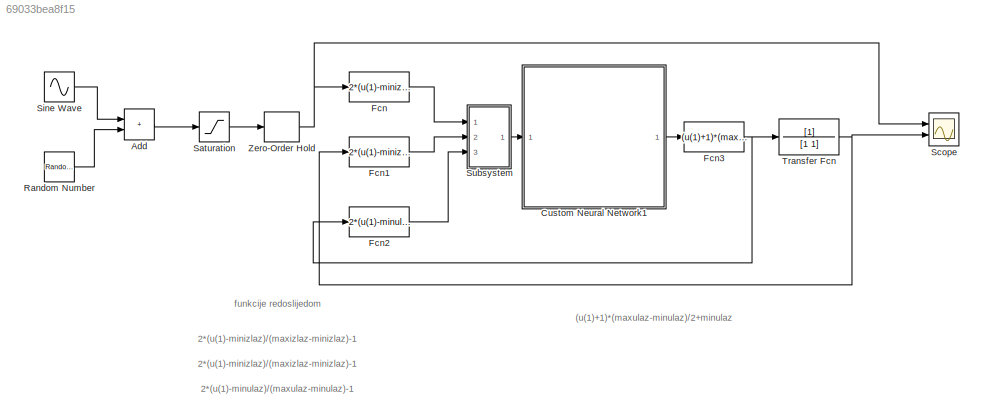
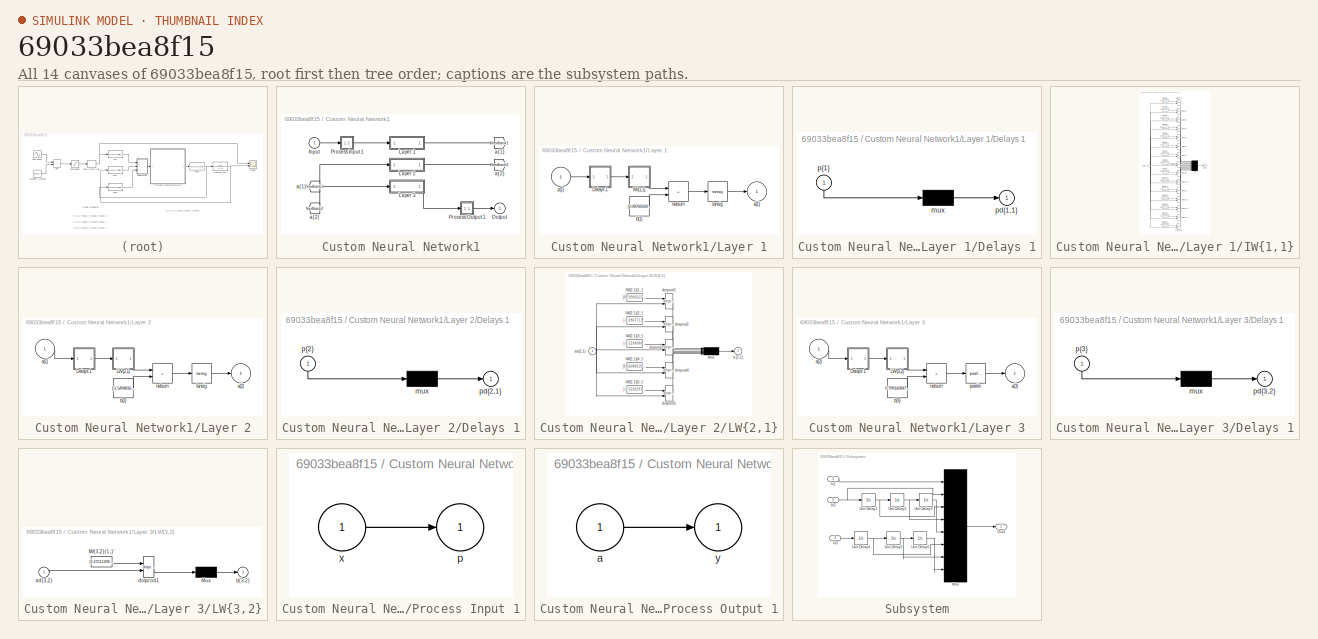
[diagram: thumbnail index - all 14 canvases of the model, root first then tree order]
MODEL slx_69033bea8f15
KIND model
CONFIG AbsTol = auto
CONFIG EnableMultiTasking = off
CONFIG FixedStep = auto
CONFIG MaxStep = auto
CONFIG MinStep = auto
CONFIG RelTol = 1e-3
CONFIG SampleTimeConstraint = Unconstrained
CONFIG Solver = VariableStepAuto
CONFIG SolverName = VariableStepAuto
CONFIG StartTime = 0.0
CONFIG StopTime = 500
BLOCK [Sum] Add
  IconShape = rectangular
  Ports = [2, 1]
BLOCK [SubSystem] Custom Neural Network1
  Ports = [1, 1]
  RequestExecContextInheritance = off
BLOCK [From] Custom Neural Network1/ a{1} 
  GotoTag = feedback1
BLOCK [From] Custom Neural Network1/ a{2} 
  GotoTag = feedback2
BLOCK [Inport] Custom Neural Network1/Input
  PortDimensions = 8
  SampleTime = 0.1
BLOCK [SubSystem] Custom Neural Network1/Layer 1
  Ports = [1, 1]
  RequestExecContextInheritance = off
BLOCK [SubSystem] Custom Neural Network1/Layer 1/Delays 1
  Ports = [1, 1]
  RequestExecContextInheritance = off
BLOCK [Mux] Custom Neural Network1/Layer 1/Delays 1/mux
  Inputs = 1
  Ports = [1, 1]
BLOCK [Outport] Custom Neural Network1/Layer 1/Delays 1/pd{1,1}
BLOCK [Inport] Custom Neural Network1/Layer 1/Delays 1/p{1}
  NameLocation = left
  PortDimensions = 8
  SampleTime = 0.1
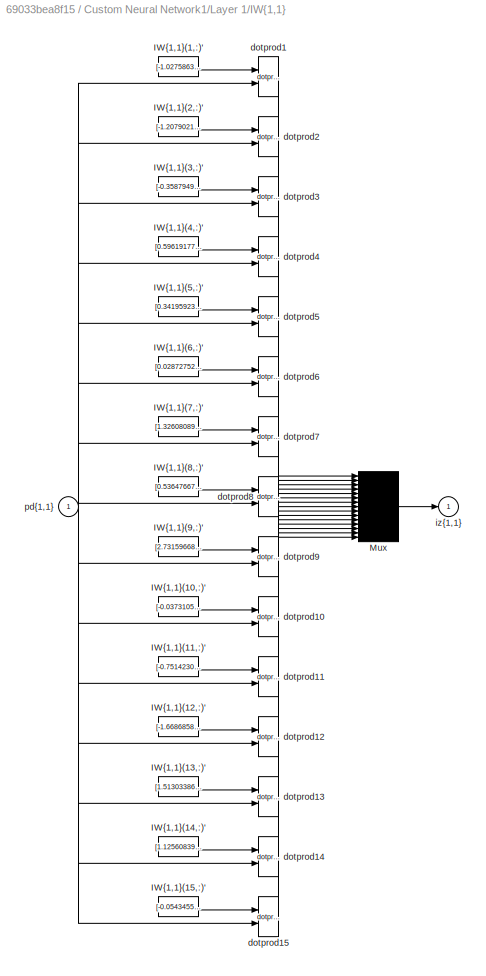
BLOCK [SubSystem] Custom Neural Network1/Layer 1/IW{1,1}
  Ports = [1, 1]
  RequestExecContextInheritance = off
BLOCK [Constant] Custom Neural Network1/Layer 1/IW{1,1}/IW{1,1}(1,:)'
  Value = [-1.0275863348131706320742750904173590242862701416015625;-0.999947970088271187449890931020490825176239013671875;0.48109124436418382320113096284330822527408599853515625;-0.03286195100972046090337386203827918507158756256103515625;0.68375141245215675933621923832106404006481170654296875;0.3314654125281240037992347424733452498912811279296875;0.9030612755274434189090015934198163449764251708984375;0.2051...<+52ch>
BLOCK [Constant] Custom Neural Network1/Layer 1/IW{1,1}/IW{1,1}(10,:)'
  Value = [-0.037310589409589388354415717685697018168866634368896484375;1.008436616771717808660469017922878265380859375;0.27288363655278591313191327571985311806201934814453125;0.38282882271249507599719663630821742117404937744140625;0.26650883025741400889074839142267592251300811767578125;0.3166699948776388051641106358147226274013519287109375;1.163362612829177411555292565026320517063140869140625;-0.0906368561...<+45ch>
BLOCK [Constant] Custom Neural Network1/Layer 1/IW{1,1}/IW{1,1}(11,:)'
  Value = [-0.751423049598227255074789354694075882434844970703125;0.6554812172530997127495311360689811408519744873046875;-1.3196210993750892015441422699950635433197021484375;0.06333609823103637792574005516144097782671451568603515625;0.21995832160983719294478078154497779905796051025390625;0.75960432513753051164684393370407633483409881591796875;0.1064750682994048958107669022865593433380126953125;-0.1373545109...<+46ch>
BLOCK [Constant] Custom Neural Network1/Layer 1/IW{1,1}/IW{1,1}(12,:)'
  Value = [-1.6686858883362798433580564960720948874950408935546875;1.851467950998757938663175082183443009853363037109375;0.64796082349922212717530101144802756607532501220703125;-0.86351476439693042319589721955708228051662445068359375;-0.6123060096010404240729485536576248705387115478515625;-0.0919452519163253267908686439113807864487171173095703125;0.1007863179141390841397907252030563540756702423095703125;0.7...<+50ch>
BLOCK [Constant] Custom Neural Network1/Layer 1/IW{1,1}/IW{1,1}(13,:)'
  Value = [1.5130338667529681373480343609116971492767333984375;-2.17693930257630796631929115392267704010009765625;-1.10439746579049735686339772655628621578216552734375;-0.7702960909510025988566894739051349461078643798828125;1.2143799878258609847847537821508012712001800537109375;0.385966627132278861100900257952162064611911773681640625;0.434933007382648784133749586544581688940525054931640625;0.748057759679934...<+37ch>
BLOCK [Constant] Custom Neural Network1/Layer 1/IW{1,1}/IW{1,1}(14,:)'
  Value = [1.1256083952683202387134997479734010994434356689453125;0.8436836583694320435000690849847160279750823974609375;1.6029204384262458749077495667734183371067047119140625;0.655820154322097170762617679429240524768829345703125;0.7940703671167899102556475554592907428741455078125;-0.03198427360007351227810801219675340689718723297119140625;0.28199681002283494279936348902992904186248779296875;0.9869746725262...<+40ch>
BLOCK [Constant] Custom Neural Network1/Layer 1/IW{1,1}/IW{1,1}(15,:)'
  Value = [-0.054345554196573352123689204518086626194417476654052734375;-0.480933522918521594302632138351327739655971527099609375;-1.1143436486929119144662081453134305775165557861328125;-0.6591535471161737991252493884530849754810333251953125;0.472955874948217724895727087641716934740543365478515625;0.76920670600206098033169155314681120216846466064453125;0.4410661412867533659465379969333298504352569580078125;...<+56ch>
BLOCK [Constant] Custom Neural Network1/Layer 1/IW{1,1}/IW{1,1}(2,:)'
  Value = [-1.2079021499995705735130968605517409741878509521484375;-0.43890025396453935524476719365338794887065887451171875;0.55303528487964548343569504140759818255901336669921875;-0.1581805893332678680796021808419027365744113922119140625;-0.66623813992578939657818182240589521825313568115234375;1.2169643835839141221555337324389256536960601806640625;-0.409685355336981860130407540054875425994396209716796875;0...<+56ch>
BLOCK [Constant] Custom Neural Network1/Layer 1/IW{1,1}/IW{1,1}(3,:)'
  Value = [-0.358794981841259741361938040427048690617084503173828125;-0.60519878047918085339773597297607921063899993896484375;-0.8389105725939483004793828513356857001781463623046875;0.12539019040677812366624266360304318368434906005859375;1.2443333881105897997798592768958769738674163818359375;-0.457689242982354915767473357846029102802276611328125;0.5546177701382302149823999570799060165882110595703125;0.14957...<+51ch>
BLOCK [Constant] Custom Neural Network1/Layer 1/IW{1,1}/IW{1,1}(4,:)'
  Value = [0.59619177119815380816447714096284471452236175537109375;-1.0603081271088103942901170739787630736827850341796875;-0.9416265881715804031415473218658007681369781494140625;0.68189136215727053080826181030715815722942352294921875;-0.389889245880035428815091336218756623566150665283203125;0.1383757651656797038608459615716128610074520111083984375;0.29564342003669941139065713286981917917728424072265625;0.8...<+52ch>
BLOCK [Constant] Custom Neural Network1/Layer 1/IW{1,1}/IW{1,1}(5,:)'
  Value = [0.341959237473623833825087103832629509270191192626953125;-0.31381347245145330138171857470297254621982574462890625;-1.023617124730410221644660850870423018932342529296875;-0.69839625227087209768939146670163609087467193603515625;0.7613630522413838974671307369135320186614990234375;-0.98533393272387781447463339645764790475368499755859375;0.020765391305655613030101136473604128696024417877197265625;-1.0...<+52ch>
BLOCK [Constant] Custom Neural Network1/Layer 1/IW{1,1}/IW{1,1}(6,:)'
  Value = [0.02872752188784655213993346478673629462718963623046875;0.1958254282722863559573767133770161308348178863525390625;0.59351475459706704018714162884862162172794342041015625;0.94268074963618364581208197705564089119434356689453125;-0.4340253141385252977357822601334191858768463134765625;-0.72759341221007944877641193670569919049739837646484375;0.773962387882525693072466310695745050907135009765625;-0.925...<+51ch>
BLOCK [Constant] Custom Neural Network1/Layer 1/IW{1,1}/IW{1,1}(7,:)'
  Value = [1.3260808930202314659396733986795879900455474853515625;-0.47917392711622885936861848676926456391811370849609375;0.7064373754523227688650877098552882671356201171875;-0.2156341353423059936655903356950148008763790130615234375;-0.5669907410646910506102358340285718441009521484375;0.10764076688299518969049728411846444942057132720947265625;-0.318842979891621303156767908149049617350101470947265625;-0.844...<+51ch>
BLOCK [Constant] Custom Neural Network1/Layer 1/IW{1,1}/IW{1,1}(8,:)'
  Value = [0.5364766721973193153161219015601091086864471435546875;0.76329068239132380480072015416226349771022796630859375;-0.392438903479865042189800306005054153501987457275390625;-1.063304554497796150513977408991195261478424072265625;-0.94089555115305512078549554644268937408924102783203125;-0.0673166911515525878684229610371403396129608154296875;-0.173975084876434038516634927873383276164531707763671875;-0.8...<+53ch>
BLOCK [Constant] Custom Neural Network1/Layer 1/IW{1,1}/IW{1,1}(9,:)'
  Value = [2.731596686647504323985913288197480142116546630859375;-1.46721083444363298298185327439568936824798583984375;-0.1779665319629475661589168566933949477970600128173828125;-0.99887203675567926008938002269132994115352630615234375;0.9829517544518309168921632590354420244693756103515625;-0.50069385059272086824222469658707268536090850830078125;-0.489889893328854408860451030705007724463939666748046875;-0.28...<+51ch>
BLOCK [Mux] Custom Neural Network1/Layer 1/IW{1,1}/Mux
  Inputs = 15
  Ports = [15, 1]
BLOCK [Reference] Custom Neural Network1/Layer 1/IW{1,1}/dotprod1  REF=neural/Weight Functions/dotprod
  Ports = [2, 1]
  SourceBlock = neural/Weight Functions/dotprod
  SourceProductBaseCode = NN
  SourceType = DOTPROD
BLOCK [Reference] Custom Neural Network1/Layer 1/IW{1,1}/dotprod10  REF=neural/Weight Functions/dotprod
  Ports = [2, 1]
  SourceBlock = neural/Weight Functions/dotprod
  SourceProductBaseCode = NN
  SourceType = DOTPROD
BLOCK [Reference] Custom Neural Network1/Layer 1/IW{1,1}/dotprod11  REF=neural/Weight Functions/dotprod
  Ports = [2, 1]
  SourceBlock = neural/Weight Functions/dotprod
  SourceProductBaseCode = NN
  SourceType = DOTPROD
BLOCK [Reference] Custom Neural Network1/Layer 1/IW{1,1}/dotprod12  REF=neural/Weight Functions/dotprod
  Ports = [2, 1]
  SourceBlock = neural/Weight Functions/dotprod
  SourceProductBaseCode = NN
  SourceType = DOTPROD
BLOCK [Reference] Custom Neural Network1/Layer 1/IW{1,1}/dotprod13  REF=neural/Weight Functions/dotprod
  Ports = [2, 1]
  SourceBlock = neural/Weight Functions/dotprod
  SourceProductBaseCode = NN
  SourceType = DOTPROD
BLOCK [Reference] Custom Neural Network1/Layer 1/IW{1,1}/dotprod14  REF=neural/Weight Functions/dotprod
  Ports = [2, 1]
  SourceBlock = neural/Weight Functions/dotprod
  SourceProductBaseCode = NN
  SourceType = DOTPROD
BLOCK [Reference] Custom Neural Network1/Layer 1/IW{1,1}/dotprod15  REF=neural/Weight Functions/dotprod
  Ports = [2, 1]
  SourceBlock = neural/Weight Functions/dotprod
  SourceProductBaseCode = NN
  SourceType = DOTPROD
BLOCK [Reference] Custom Neural Network1/Layer 1/IW{1,1}/dotprod2  REF=neural/Weight Functions/dotprod
  Ports = [2, 1]
  SourceBlock = neural/Weight Functions/dotprod
  SourceProductBaseCode = NN
  SourceType = DOTPROD
BLOCK [Reference] Custom Neural Network1/Layer 1/IW{1,1}/dotprod3  REF=neural/Weight Functions/dotprod
  Ports = [2, 1]
  SourceBlock = neural/Weight Functions/dotprod
  SourceProductBaseCode = NN
  SourceType = DOTPROD
BLOCK [Reference] Custom Neural Network1/Layer 1/IW{1,1}/dotprod4  REF=neural/Weight Functions/dotprod
  Ports = [2, 1]
  SourceBlock = neural/Weight Functions/dotprod
  SourceProductBaseCode = NN
  SourceType = DOTPROD
BLOCK [Reference] Custom Neural Network1/Layer 1/IW{1,1}/dotprod5  REF=neural/Weight Functions/dotprod
  Ports = [2, 1]
  SourceBlock = neural/Weight Functions/dotprod
  SourceProductBaseCode = NN
  SourceType = DOTPROD
BLOCK [Reference] Custom Neural Network1/Layer 1/IW{1,1}/dotprod6  REF=neural/Weight Functions/dotprod
  Ports = [2, 1]
  SourceBlock = neural/Weight Functions/dotprod
  SourceProductBaseCode = NN
  SourceType = DOTPROD
BLOCK [Reference] Custom Neural Network1/Layer 1/IW{1,1}/dotprod7  REF=neural/Weight Functions/dotprod
  Ports = [2, 1]
  SourceBlock = neural/Weight Functions/dotprod
  SourceProductBaseCode = NN
  SourceType = DOTPROD
BLOCK [Reference] Custom Neural Network1/Layer 1/IW{1,1}/dotprod8  REF=neural/Weight Functions/dotprod
  Ports = [2, 1]
  SourceBlock = neural/Weight Functions/dotprod
  SourceProductBaseCode = NN
  SourceType = DOTPROD
BLOCK [Reference] Custom Neural Network1/Layer 1/IW{1,1}/dotprod9  REF=neural/Weight Functions/dotprod
  Ports = [2, 1]
  SourceBlock = neural/Weight Functions/dotprod
  SourceProductBaseCode = NN
  SourceType = DOTPROD
BLOCK [Outport] Custom Neural Network1/Layer 1/IW{1,1}/iz{1,1}
BLOCK [Inport] Custom Neural Network1/Layer 1/IW{1,1}/pd{1,1}
  PortDimensions = 8
  SampleTime = 0.1
BLOCK [Outport] Custom Neural Network1/Layer 1/a{1}
  InitialOutput = [0;0;0;0;0;0;0;0;0;0;0;0;0;0;0]
BLOCK [Constant] Custom Neural Network1/Layer 1/b{1}
  Value = [2.087665690100422910546740240533836185932159423828125;1.1739745122774134511445254247519187629222869873046875;1.675934371421039958960363946971483528614044189453125;-0.393427049778015625047800085667404346168041229248046875;-0.4706519578583912011282563980785198509693145751953125;0.567630712968673289964272044016979634761810302734375;-0.179836407684174692800382899804390035569667816162109375;-0.0472902...<+450ch>
BLOCK [Sum] Custom Neural Network1/Layer 1/netsum
  IconShape = rectangular
  InputSameDT = on
  Inputs = 2
  OutDataTypeStr = Inherit: Same as first input
  Ports = [2, 1]
  SaturateOnIntegerOverflow = on
BLOCK [Inport] Custom Neural Network1/Layer 1/p{1}
  PortDimensions = 8
  SampleTime = 0.1
BLOCK [Reference] Custom Neural Network1/Layer 1/tansig  REF=neural/Transfer Functions/tansig
  Ports = [1, 1]
  SourceBlock = neural/Transfer Functions/tansig
  SourceProductBaseCode = NN
  SourceType = TANSIG
BLOCK [SubSystem] Custom Neural Network1/Layer 2
  Ports = [1, 1]
  RequestExecContextInheritance = off
BLOCK [SubSystem] Custom Neural Network1/Layer 2/Delays 1
  Ports = [1, 1]
  RequestExecContextInheritance = off
BLOCK [Mux] Custom Neural Network1/Layer 2/Delays 1/mux
  Inputs = 1
  Ports = [1, 1]
BLOCK [Outport] Custom Neural Network1/Layer 2/Delays 1/pd{2,1}
BLOCK [Inport] Custom Neural Network1/Layer 2/Delays 1/p{2}
  NameLocation = left
  PortDimensions = 15
  SampleTime = 0.1
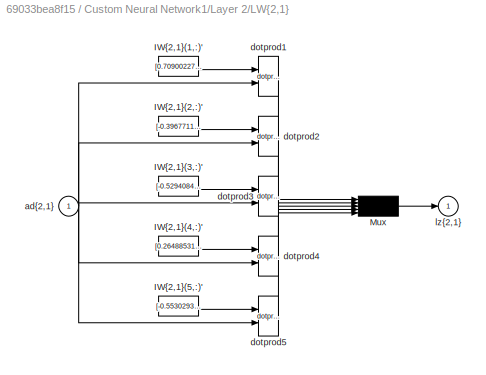
BLOCK [SubSystem] Custom Neural Network1/Layer 2/LW{2,1}
  Ports = [1, 1]
  RequestExecContextInheritance = off
BLOCK [Constant] Custom Neural Network1/Layer 2/LW{2,1}/IW{2,1}(1,:)'
  Value = [0.70900227340915977780611001435318030416965484619140625;-0.1402862664961441740985037540667690336704254150390625;0.1005842990715120899292145395520492456853389739990234375;0.258804291003280562133426201398833654820919036865234375;-0.374264071843763534985782825970090925693511962890625;0.63319072749247606868294724336010403931140899658203125;0.1785898583822970453471867813277640379965305328369140625;0.4...<+450ch>
BLOCK [Constant] Custom Neural Network1/Layer 2/LW{2,1}/IW{2,1}(2,:)'
  Value = [-0.39677114835257043523597531020641326904296875;0.0530760009166804935798467113272636197507381439208984375;0.2397517411458790770328874941696994937956333160400390625;-0.4171480689235662620006905854097567498683929443359375;0.2094278346430335224770402646754519082605838775634765625;0.336111090863887629343054186392691917717456817626953125;-0.381056808862368534551734455817495472729206085205078125;-0.252...<+447ch>
BLOCK [Constant] Custom Neural Network1/Layer 2/LW{2,1}/IW{2,1}(3,:)'
  Value = [-0.5294084264009868423528359926422126591205596923828125;0.52574230041222980158721611587679944932460784912109375;-0.06483674060168166664031019763569929637014865875244140625;-0.58730089851251621180239226305275224149227142333984375;-0.06699455829804086548495689612536807544529438018798828125;-0.1361644623201272719104082398189348168671131134033203125;-0.482291766336902349987525440155877731740474700927...<+459ch>
BLOCK [Constant] Custom Neural Network1/Layer 2/LW{2,1}/IW{2,1}(4,:)'
  Value = [0.264885311900184550193415589092182926833629608154296875;-0.02597787806725897208348641242992016486823558807373046875;-0.1630126046749917623213121942171710543334484100341796875;0.86699916847544333808883720848825760185718536376953125;0.241571875052510820491846743607311509549617767333984375;-0.297772408059102655641936507890932261943817138671875;0.39784932810425377436303051581489853560924530029296875...<+445ch>
BLOCK [Constant] Custom Neural Network1/Layer 2/LW{2,1}/IW{2,1}(5,:)'
  Value = [-0.55302938190082640002032121628872118890285491943359375;-0.137866866884136574089581017688033170998096466064453125;-0.48888713171086151110245054951519705355167388916015625;-0.373857741686481503951000604502041824162006378173828125;-0.1411027766836747965317755415526335127651691436767578125;-0.263178524048826856240879124015918932855129241943359375;-0.0972350916170386381232049188838573172688484191894...<+463ch>
BLOCK [Mux] Custom Neural Network1/Layer 2/LW{2,1}/Mux
  Inputs = 5
  Ports = [5, 1]
BLOCK [Inport] Custom Neural Network1/Layer 2/LW{2,1}/ad{2,1}
  PortDimensions = 15
  SampleTime = 0.1
BLOCK [Reference] Custom Neural Network1/Layer 2/LW{2,1}/dotprod1  REF=neural/Weight Functions/dotprod
  Ports = [2, 1]
  SourceBlock = neural/Weight Functions/dotprod
  SourceProductBaseCode = NN
  SourceType = DOTPROD
BLOCK [Reference] Custom Neural Network1/Layer 2/LW{2,1}/dotprod2  REF=neural/Weight Functions/dotprod
  Ports = [2, 1]
  SourceBlock = neural/Weight Functions/dotprod
  SourceProductBaseCode = NN
  SourceType = DOTPROD
BLOCK [Reference] Custom Neural Network1/Layer 2/LW{2,1}/dotprod3  REF=neural/Weight Functions/dotprod
  Ports = [2, 1]
  SourceBlock = neural/Weight Functions/dotprod
  SourceProductBaseCode = NN
  SourceType = DOTPROD
BLOCK [Reference] Custom Neural Network1/Layer 2/LW{2,1}/dotprod4  REF=neural/Weight Functions/dotprod
  Ports = [2, 1]
  SourceBlock = neural/Weight Functions/dotprod
  SourceProductBaseCode = NN
  SourceType = DOTPROD
BLOCK [Reference] Custom Neural Network1/Layer 2/LW{2,1}/dotprod5  REF=neural/Weight Functions/dotprod
  Ports = [2, 1]
  SourceBlock = neural/Weight Functions/dotprod
  SourceProductBaseCode = NN
  SourceType = DOTPROD
BLOCK [Outport] Custom Neural Network1/Layer 2/LW{2,1}/lz{2,1}
BLOCK [Inport] Custom Neural Network1/Layer 2/a{1} 
  PortDimensions = 15
  SampleTime = 0.1
BLOCK [Outport] Custom Neural Network1/Layer 2/a{2}
  InitialOutput = [0;0;0;0;0]
BLOCK [Constant] Custom Neural Network1/Layer 2/b{2}
  Value = [-1.549481648569955183347701677121222019195556640625;0.87151326708374032836701417181757278740406036376953125;-0.05964148046692664684176321543418453074991703033447265625;0.76091773106530580239592609359533526003360748291015625;-1.5406837754555298136693863852997310459613800048828125]
BLOCK [Sum] Custom Neural Network1/Layer 2/netsum
  IconShape = rectangular
  InputSameDT = on
  Inputs = 2
  OutDataTypeStr = Inherit: Same as first input
  Ports = [2, 1]
  SaturateOnIntegerOverflow = on
BLOCK [Reference] Custom Neural Network1/Layer 2/tansig  REF=neural/Transfer Functions/tansig
  Ports = [1, 1]
  SourceBlock = neural/Transfer Functions/tansig
  SourceProductBaseCode = NN
  SourceType = TANSIG
BLOCK [SubSystem] Custom Neural Network1/Layer 3
  Ports = [1, 1]
  RequestExecContextInheritance = off
BLOCK [SubSystem] Custom Neural Network1/Layer 3/Delays 1
  Ports = [1, 1]
  RequestExecContextInheritance = off
BLOCK [Mux] Custom Neural Network1/Layer 3/Delays 1/mux
  Inputs = 1
  Ports = [1, 1]
BLOCK [Outport] Custom Neural Network1/Layer 3/Delays 1/pd{3,2}
BLOCK [Inport] Custom Neural Network1/Layer 3/Delays 1/p{3}
  NameLocation = left
  PortDimensions = 5
  SampleTime = 0.1
BLOCK [SubSystem] Custom Neural Network1/Layer 3/LW{3,2}
  Ports = [1, 1]
  RequestExecContextInheritance = off
BLOCK [Constant] Custom Neural Network1/Layer 3/LW{3,2}/IW{3,2}(1,:)'
  Value = [2.475113089845215608164608056540600955486297607421875;0.0685170385620239574819834160734899342060089111328125;-1.1976922648107402036288249291828833520412445068359375;3.786740535915438687908363135647960007190704345703125;0.94535405758437274226224644735339097678661346435546875]
BLOCK [Mux] Custom Neural Network1/Layer 3/LW{3,2}/Mux
  Inputs = 1
  Ports = [1, 1]
BLOCK [Inport] Custom Neural Network1/Layer 3/LW{3,2}/ad{3,2}
  PortDimensions = 5
  SampleTime = 0.1
BLOCK [Reference] Custom Neural Network1/Layer 3/LW{3,2}/dotprod1  REF=neural/Weight Functions/dotprod
  Ports = [2, 1]
  SourceBlock = neural/Weight Functions/dotprod
  SourceProductBaseCode = NN
  SourceType = DOTPROD
BLOCK [Outport] Custom Neural Network1/Layer 3/LW{3,2}/lz{3,2}
BLOCK [Inport] Custom Neural Network1/Layer 3/a{2} 
  PortDimensions = 5
  SampleTime = 0.1
BLOCK [Outport] Custom Neural Network1/Layer 3/a{3}
  InitialOutput = 0
BLOCK [Constant] Custom Neural Network1/Layer 3/b{3}
  Value = 0.79914284770140520119952043387456797063350677490234375
BLOCK [Sum] Custom Neural Network1/Layer 3/netsum
  IconShape = rectangular
  InputSameDT = on
  Inputs = 2
  OutDataTypeStr = Inherit: Same as first input
  Ports = [2, 1]
  SaturateOnIntegerOverflow = on
BLOCK [Reference] Custom Neural Network1/Layer 3/purelin  REF=neural/Transfer Functions/purelin
  Ports = [1, 1]
  SourceBlock = neural/Transfer Functions/purelin
  SourceProductBaseCode = NN
  SourceType = PURELIN
BLOCK [Outport] Custom Neural Network1/Output
  InitialOutput = 0
BLOCK [SubSystem] Custom Neural Network1/Process Input 1
  Ports = [1, 1]
  RequestExecContextInheritance = off
BLOCK [Outport] Custom Neural Network1/Process Input 1/p
  PortDimensions = 8
  SampleTime = 0.1
BLOCK [Inport] Custom Neural Network1/Process Input 1/x
  PortDimensions = 8
  SampleTime = 0.1
BLOCK [SubSystem] Custom Neural Network1/Process Output 1
  Ports = [1, 1]
  RequestExecContextInheritance = off
BLOCK [Inport] Custom Neural Network1/Process Output 1/a
  PortDimensions = 1
  SampleTime = 0.1
BLOCK [Outport] Custom Neural Network1/Process Output 1/y
  PortDimensions = 1
  SampleTime = 0.1
BLOCK [Goto] Custom Neural Network1/a{1}
  GotoTag = feedback1
BLOCK [Goto] Custom Neural Network1/a{2}
  GotoTag = feedback2
BLOCK [Fcn] Fcn
  Expr = 2*(u(1)-minizlaz)/(maxizlaz-minizlaz)-1
BLOCK [Fcn] Fcn1
  Expr = 2*(u(1)-minizlaz)/(maxizlaz-minizlaz)-1
BLOCK [Fcn] Fcn2
  Expr = 2*(u(1)-minulaz)/(maxulaz-minulaz)-1
BLOCK [Fcn] Fcn3
  Expr = (u(1)+1)*(maxulaz-minulaz)/2+minulaz
BLOCK [RandomNumber] Random Number
  SampleTime = 0.1
BLOCK [Saturate] Saturation
  LowerLimit = -5
  UpperLimit = 5
BLOCK [Scope] Scope
  Floating = off
  NumInputPorts = 2
  Ports = [2]
  ScopeSpecificationString = Simulink.scopes.TimeScopeBlockCfg('CurrentConfiguration', extmgr.ConfigurationSet(extmgr.Configuration('Core','General UI',true),extmgr.Configuration('Core','Source UI',true),extmgr.Configuration('Sources','WiredSimulink',true),extmgr.Configuration('Visuals','Time Domain',true,'SerializedDisplays',{struct('MinYLimReal','-6.67767','MaxYLimReal','6.63627','YLabelReal','','MinYLimMag','0.00000','MaxY...<+1402ch>
BLOCK [Sin] Sine Wave
  Amplitude = 4
  Frequency = 0.025
  Ports = [0, 1]
  SampleTime = 0.1
BLOCK [SubSystem] Subsystem
  Ports = [3, 1]
  RequestExecContextInheritance = off
BLOCK [Inport] Subsystem/In1
BLOCK [Inport] Subsystem/In2
  Port = 2
BLOCK [Inport] Subsystem/In3
  Port = 3
BLOCK [Mux] Subsystem/Mux
  DisplayOption = bar
  Inputs = 8
  Ports = [8, 1]
BLOCK [Outport] Subsystem/Out1
BLOCK [UnitDelay] Subsystem/Unit Delay1
  HasFrameUpgradeWarning = on
  SampleTime = -1
BLOCK [UnitDelay] Subsystem/Unit Delay2
  HasFrameUpgradeWarning = on
  SampleTime = -1
BLOCK [UnitDelay] Subsystem/Unit Delay3
  HasFrameUpgradeWarning = on
  SampleTime = -1
BLOCK [UnitDelay] Subsystem/Unit Delay4
  HasFrameUpgradeWarning = on
  SampleTime = -1
BLOCK [UnitDelay] Subsystem/Unit Delay5
  HasFrameUpgradeWarning = on
  SampleTime = -1
BLOCK [UnitDelay] Subsystem/Unit Delay6
  HasFrameUpgradeWarning = on
  SampleTime = -1
BLOCK [TransferFcn] Transfer Fcn
BLOCK [ZeroOrderHold] Zero-Order Hold
  SampleTime = 0.1
ANNOTATION (root): (u(1)+1)*(maxulaz-minulaz)/2+minulaz
ANNOTATION (root): 2*(u(1)-minizlaz)/(maxizlaz-minizlaz)-1
ANNOTATION (root): 2*(u(1)-minulaz)/(maxulaz-minulaz)-1
ANNOTATION (root): funkcije redoslijedom
LINE Add:1 -> Saturation:1
LINE Custom Neural Network1/ a{1} :1 -> Custom Neural Network1/Layer 2:1
LINE Custom Neural Network1/ a{2} :1 -> Custom Neural Network1/Layer 3:1
LINE Custom Neural Network1/Input:1 -> Custom Neural Network1/Process Input 1:1
LINE Custom Neural Network1/Layer 1/Delays 1/mux:1 -> Custom Neural Network1/Layer 1/Delays 1/pd{1,1}:1
LINE Custom Neural Network1/Layer 1/Delays 1/p{1}:1 -> Custom Neural Network1/Layer 1/Delays 1/mux:1
LINE Custom Neural Network1/Layer 1/Delays 1:1 -> Custom Neural Network1/Layer 1/IW{1,1}:1
LINE Custom Neural Network1/Layer 1/IW{1,1}/IW{1,1}(1,:)':1 -> Custom Neural Network1/Layer 1/IW{1,1}/dotprod1:1
LINE Custom Neural Network1/Layer 1/IW{1,1}/IW{1,1}(10,:)':1 -> Custom Neural Network1/Layer 1/IW{1,1}/dotprod10:1
LINE Custom Neural Network1/Layer 1/IW{1,1}/IW{1,1}(11,:)':1 -> Custom Neural Network1/Layer 1/IW{1,1}/dotprod11:1
LINE Custom Neural Network1/Layer 1/IW{1,1}/IW{1,1}(12,:)':1 -> Custom Neural Network1/Layer 1/IW{1,1}/dotprod12:1
LINE Custom Neural Network1/Layer 1/IW{1,1}/IW{1,1}(13,:)':1 -> Custom Neural Network1/Layer 1/IW{1,1}/dotprod13:1
LINE Custom Neural Network1/Layer 1/IW{1,1}/IW{1,1}(14,:)':1 -> Custom Neural Network1/Layer 1/IW{1,1}/dotprod14:1
LINE Custom Neural Network1/Layer 1/IW{1,1}/IW{1,1}(15,:)':1 -> Custom Neural Network1/Layer 1/IW{1,1}/dotprod15:1
LINE Custom Neural Network1/Layer 1/IW{1,1}/IW{1,1}(2,:)':1 -> Custom Neural Network1/Layer 1/IW{1,1}/dotprod2:1
LINE Custom Neural Network1/Layer 1/IW{1,1}/IW{1,1}(3,:)':1 -> Custom Neural Network1/Layer 1/IW{1,1}/dotprod3:1
LINE Custom Neural Network1/Layer 1/IW{1,1}/IW{1,1}(4,:)':1 -> Custom Neural Network1/Layer 1/IW{1,1}/dotprod4:1
LINE Custom Neural Network1/Layer 1/IW{1,1}/IW{1,1}(5,:)':1 -> Custom Neural Network1/Layer 1/IW{1,1}/dotprod5:1
LINE Custom Neural Network1/Layer 1/IW{1,1}/IW{1,1}(6,:)':1 -> Custom Neural Network1/Layer 1/IW{1,1}/dotprod6:1
LINE Custom Neural Network1/Layer 1/IW{1,1}/IW{1,1}(7,:)':1 -> Custom Neural Network1/Layer 1/IW{1,1}/dotprod7:1
LINE Custom Neural Network1/Layer 1/IW{1,1}/IW{1,1}(8,:)':1 -> Custom Neural Network1/Layer 1/IW{1,1}/dotprod8:1
LINE Custom Neural Network1/Layer 1/IW{1,1}/IW{1,1}(9,:)':1 -> Custom Neural Network1/Layer 1/IW{1,1}/dotprod9:1
LINE Custom Neural Network1/Layer 1/IW{1,1}/Mux:1 -> Custom Neural Network1/Layer 1/IW{1,1}/iz{1,1}:1
LINE Custom Neural Network1/Layer 1/IW{1,1}/dotprod10:1 -> Custom Neural Network1/Layer 1/IW{1,1}/Mux:10
LINE Custom Neural Network1/Layer 1/IW{1,1}/dotprod11:1 -> Custom Neural Network1/Layer 1/IW{1,1}/Mux:11
LINE Custom Neural Network1/Layer 1/IW{1,1}/dotprod12:1 -> Custom Neural Network1/Layer 1/IW{1,1}/Mux:12
LINE Custom Neural Network1/Layer 1/IW{1,1}/dotprod13:1 -> Custom Neural Network1/Layer 1/IW{1,1}/Mux:13
LINE Custom Neural Network1/Layer 1/IW{1,1}/dotprod14:1 -> Custom Neural Network1/Layer 1/IW{1,1}/Mux:14
LINE Custom Neural Network1/Layer 1/IW{1,1}/dotprod15:1 -> Custom Neural Network1/Layer 1/IW{1,1}/Mux:15
LINE Custom Neural Network1/Layer 1/IW{1,1}/dotprod1:1 -> Custom Neural Network1/Layer 1/IW{1,1}/Mux:1
LINE Custom Neural Network1/Layer 1/IW{1,1}/dotprod2:1 -> Custom Neural Network1/Layer 1/IW{1,1}/Mux:2
LINE Custom Neural Network1/Layer 1/IW{1,1}/dotprod3:1 -> Custom Neural Network1/Layer 1/IW{1,1}/Mux:3
LINE Custom Neural Network1/Layer 1/IW{1,1}/dotprod4:1 -> Custom Neural Network1/Layer 1/IW{1,1}/Mux:4
LINE Custom Neural Network1/Layer 1/IW{1,1}/dotprod5:1 -> Custom Neural Network1/Layer 1/IW{1,1}/Mux:5
LINE Custom Neural Network1/Layer 1/IW{1,1}/dotprod6:1 -> Custom Neural Network1/Layer 1/IW{1,1}/Mux:6
LINE Custom Neural Network1/Layer 1/IW{1,1}/dotprod7:1 -> Custom Neural Network1/Layer 1/IW{1,1}/Mux:7
LINE Custom Neural Network1/Layer 1/IW{1,1}/dotprod8:1 -> Custom Neural Network1/Layer 1/IW{1,1}/Mux:8
LINE Custom Neural Network1/Layer 1/IW{1,1}/dotprod9:1 -> Custom Neural Network1/Layer 1/IW{1,1}/Mux:9
NET Custom Neural Network1/Layer 1/IW{1,1}/pd{1,1}:1 -> Custom Neural Network1/Layer 1/IW{1,1}/dotprod10:2, Custom Neural Network1/Layer 1/IW{1,1}/dotprod11:2, Custom Neural Network1/Layer 1/IW{1,1}/dotprod12:2, Custom Neural Network1/Layer 1/IW{1,1}/dotprod13:2, Custom Neural Network1/Layer 1/IW{1,1}/dotprod14:2, Custom Neural Network1/Layer 1/IW{1,1}/dotprod15:2, Custom Neural Network1/Layer 1/IW{1,1}/dotprod1:2, Custom Neural Network1/Layer 1/IW{1,1}/dotprod2:2, Custom Neural Network1/Layer 1/IW{1,1}/dotprod3:2, Custom Neural Network1/Layer 1/IW{1,1}/dotprod4:2, Custom Neural Network1/Layer 1/IW{1,1}/dotprod5:2, Custom Neural Network1/Layer 1/IW{1,1}/dotprod6:2, Custom Neural Network1/Layer 1/IW{1,1}/dotprod7:2, Custom Neural Network1/Layer 1/IW{1,1}/dotprod8:2, Custom Neural Network1/Layer 1/IW{1,1}/dotprod9:2
LINE Custom Neural Network1/Layer 1/IW{1,1}:1 -> Custom Neural Network1/Layer 1/netsum:1
LINE Custom Neural Network1/Layer 1/b{1}:1 -> Custom Neural Network1/Layer 1/netsum:2
LINE Custom Neural Network1/Layer 1/netsum:1 -> Custom Neural Network1/Layer 1/tansig:1
LINE Custom Neural Network1/Layer 1/p{1}:1 -> Custom Neural Network1/Layer 1/Delays 1:1
LINE Custom Neural Network1/Layer 1/tansig:1 -> Custom Neural Network1/Layer 1/a{1}:1
LINE Custom Neural Network1/Layer 1:1 -> Custom Neural Network1/a{1}:1
LINE Custom Neural Network1/Layer 2/Delays 1/mux:1 -> Custom Neural Network1/Layer 2/Delays 1/pd{2,1}:1
LINE Custom Neural Network1/Layer 2/Delays 1/p{2}:1 -> Custom Neural Network1/Layer 2/Delays 1/mux:1
LINE Custom Neural Network1/Layer 2/Delays 1:1 -> Custom Neural Network1/Layer 2/LW{2,1}:1
LINE Custom Neural Network1/Layer 2/LW{2,1}/IW{2,1}(1,:)':1 -> Custom Neural Network1/Layer 2/LW{2,1}/dotprod1:1
LINE Custom Neural Network1/Layer 2/LW{2,1}/IW{2,1}(2,:)':1 -> Custom Neural Network1/Layer 2/LW{2,1}/dotprod2:1
LINE Custom Neural Network1/Layer 2/LW{2,1}/IW{2,1}(3,:)':1 -> Custom Neural Network1/Layer 2/LW{2,1}/dotprod3:1
LINE Custom Neural Network1/Layer 2/LW{2,1}/IW{2,1}(4,:)':1 -> Custom Neural Network1/Layer 2/LW{2,1}/dotprod4:1
LINE Custom Neural Network1/Layer 2/LW{2,1}/IW{2,1}(5,:)':1 -> Custom Neural Network1/Layer 2/LW{2,1}/dotprod5:1
LINE Custom Neural Network1/Layer 2/LW{2,1}/Mux:1 -> Custom Neural Network1/Layer 2/LW{2,1}/lz{2,1}:1
NET Custom Neural Network1/Layer 2/LW{2,1}/ad{2,1}:1 -> Custom Neural Network1/Layer 2/LW{2,1}/dotprod1:2, Custom Neural Network1/Layer 2/LW{2,1}/dotprod2:2, Custom Neural Network1/Layer 2/LW{2,1}/dotprod3:2, Custom Neural Network1/Layer 2/LW{2,1}/dotprod4:2, Custom Neural Network1/Layer 2/LW{2,1}/dotprod5:2
LINE Custom Neural Network1/Layer 2/LW{2,1}/dotprod1:1 -> Custom Neural Network1/Layer 2/LW{2,1}/Mux:1
LINE Custom Neural Network1/Layer 2/LW{2,1}/dotprod2:1 -> Custom Neural Network1/Layer 2/LW{2,1}/Mux:2
LINE Custom Neural Network1/Layer 2/LW{2,1}/dotprod3:1 -> Custom Neural Network1/Layer 2/LW{2,1}/Mux:3
LINE Custom Neural Network1/Layer 2/LW{2,1}/dotprod4:1 -> Custom Neural Network1/Layer 2/LW{2,1}/Mux:4
LINE Custom Neural Network1/Layer 2/LW{2,1}/dotprod5:1 -> Custom Neural Network1/Layer 2/LW{2,1}/Mux:5
LINE Custom Neural Network1/Layer 2/LW{2,1}:1 -> Custom Neural Network1/Layer 2/netsum:1
LINE Custom Neural Network1/Layer 2/a{1} :1 -> Custom Neural Network1/Layer 2/Delays 1:1
LINE Custom Neural Network1/Layer 2/b{2}:1 -> Custom Neural Network1/Layer 2/netsum:2
LINE Custom Neural Network1/Layer 2/netsum:1 -> Custom Neural Network1/Layer 2/tansig:1
LINE Custom Neural Network1/Layer 2/tansig:1 -> Custom Neural Network1/Layer 2/a{2}:1
LINE Custom Neural Network1/Layer 2:1 -> Custom Neural Network1/a{2}:1
LINE Custom Neural Network1/Layer 3/Delays 1/mux:1 -> Custom Neural Network1/Layer 3/Delays 1/pd{3,2}:1
LINE Custom Neural Network1/Layer 3/Delays 1/p{3}:1 -> Custom Neural Network1/Layer 3/Delays 1/mux:1
LINE Custom Neural Network1/Layer 3/Delays 1:1 -> Custom Neural Network1/Layer 3/LW{3,2}:1
LINE Custom Neural Network1/Layer 3/LW{3,2}/IW{3,2}(1,:)':1 -> Custom Neural Network1/Layer 3/LW{3,2}/dotprod1:1
LINE Custom Neural Network1/Layer 3/LW{3,2}/Mux:1 -> Custom Neural Network1/Layer 3/LW{3,2}/lz{3,2}:1
LINE Custom Neural Network1/Layer 3/LW{3,2}/ad{3,2}:1 -> Custom Neural Network1/Layer 3/LW{3,2}/dotprod1:2
LINE Custom Neural Network1/Layer 3/LW{3,2}/dotprod1:1 -> Custom Neural Network1/Layer 3/LW{3,2}/Mux:1
LINE Custom Neural Network1/Layer 3/LW{3,2}:1 -> Custom Neural Network1/Layer 3/netsum:1
LINE Custom Neural Network1/Layer 3/a{2} :1 -> Custom Neural Network1/Layer 3/Delays 1:1
LINE Custom Neural Network1/Layer 3/b{3}:1 -> Custom Neural Network1/Layer 3/netsum:2
LINE Custom Neural Network1/Layer 3/netsum:1 -> Custom Neural Network1/Layer 3/purelin:1
LINE Custom Neural Network1/Layer 3/purelin:1 -> Custom Neural Network1/Layer 3/a{3}:1
LINE Custom Neural Network1/Layer 3:1 -> Custom Neural Network1/Process Output 1:1
LINE Custom Neural Network1/Process Input 1/x:1 -> Custom Neural Network1/Process Input 1/p:1
LINE Custom Neural Network1/Process Input 1:1 -> Custom Neural Network1/Layer 1:1
LINE Custom Neural Network1/Process Output 1/a:1 -> Custom Neural Network1/Process Output 1/y:1
LINE Custom Neural Network1/Process Output 1:1 -> Custom Neural Network1/Output:1
LINE Custom Neural Network1:1 -> Fcn3:1
LINE Fcn1:1 -> Subsystem:2
LINE Fcn2:1 -> Subsystem:3
NET Fcn3:1 -> Fcn2:1, Transfer Fcn:1
LINE Fcn:1 -> Subsystem:1
LINE Random Number:1 -> Add:2
LINE Saturation:1 -> Zero-Order Hold:1
LINE Sine Wave:1 -> Add:1
LINE Subsystem/In1:1 -> Subsystem/Mux:1
NET Subsystem/In2:1 -> Subsystem/Mux:2, Subsystem/Unit Delay1:1
LINE Subsystem/In3:1 -> Subsystem/Unit Delay4:1
LINE Subsystem/Mux:1 -> Subsystem/Out1:1
NET Subsystem/Unit Delay1:1 -> Subsystem/Mux:3, Subsystem/Unit Delay2:1
NET Subsystem/Unit Delay2:1 -> Subsystem/Mux:4, Subsystem/Unit Delay3:1
LINE Subsystem/Unit Delay3:1 -> Subsystem/Mux:5
NET Subsystem/Unit Delay4:1 -> Subsystem/Mux:6, Subsystem/Unit Delay5:1
NET Subsystem/Unit Delay5:1 -> Subsystem/Mux:7, Subsystem/Unit Delay6:1
LINE Subsystem/Unit Delay6:1 -> Subsystem/Mux:8
LINE Subsystem:1 -> Custom Neural Network1:1
NET Transfer Fcn:1 -> Fcn1:1, Scope:2
NET Zero-Order Hold:1 -> Fcn:1, Scope:1
note: NET lines group one-source signal fan-out (src -> all destinations, sorted); 1:1 wires keep LINE
